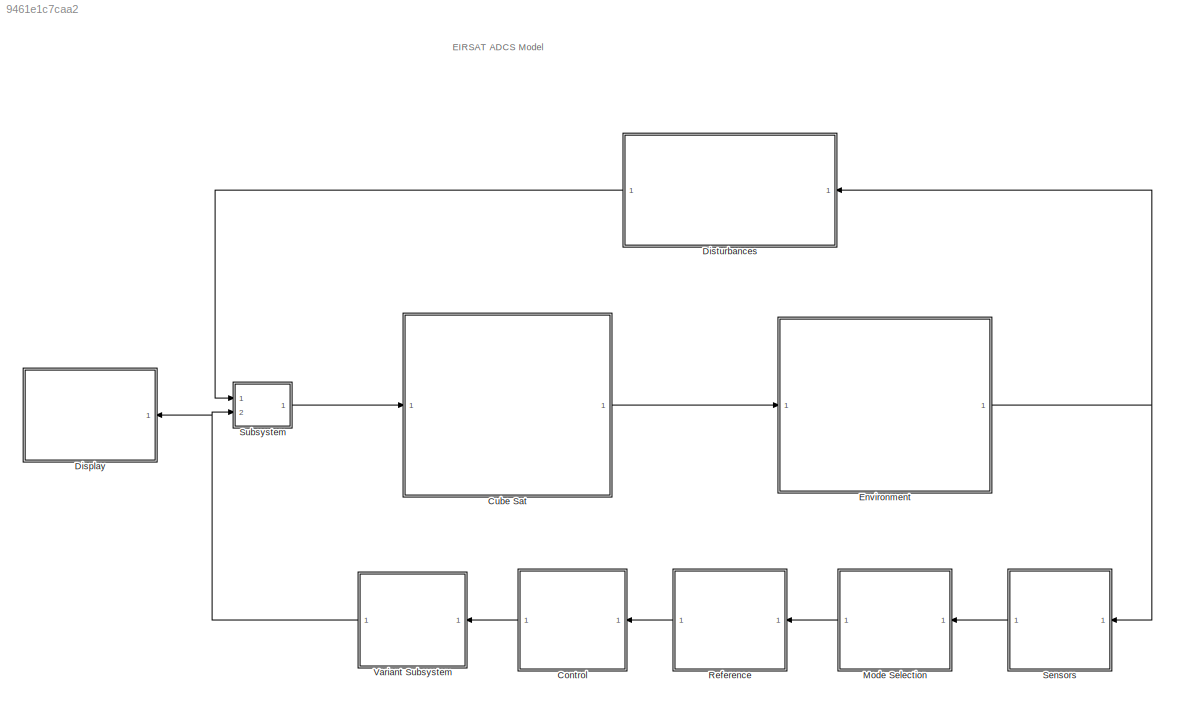
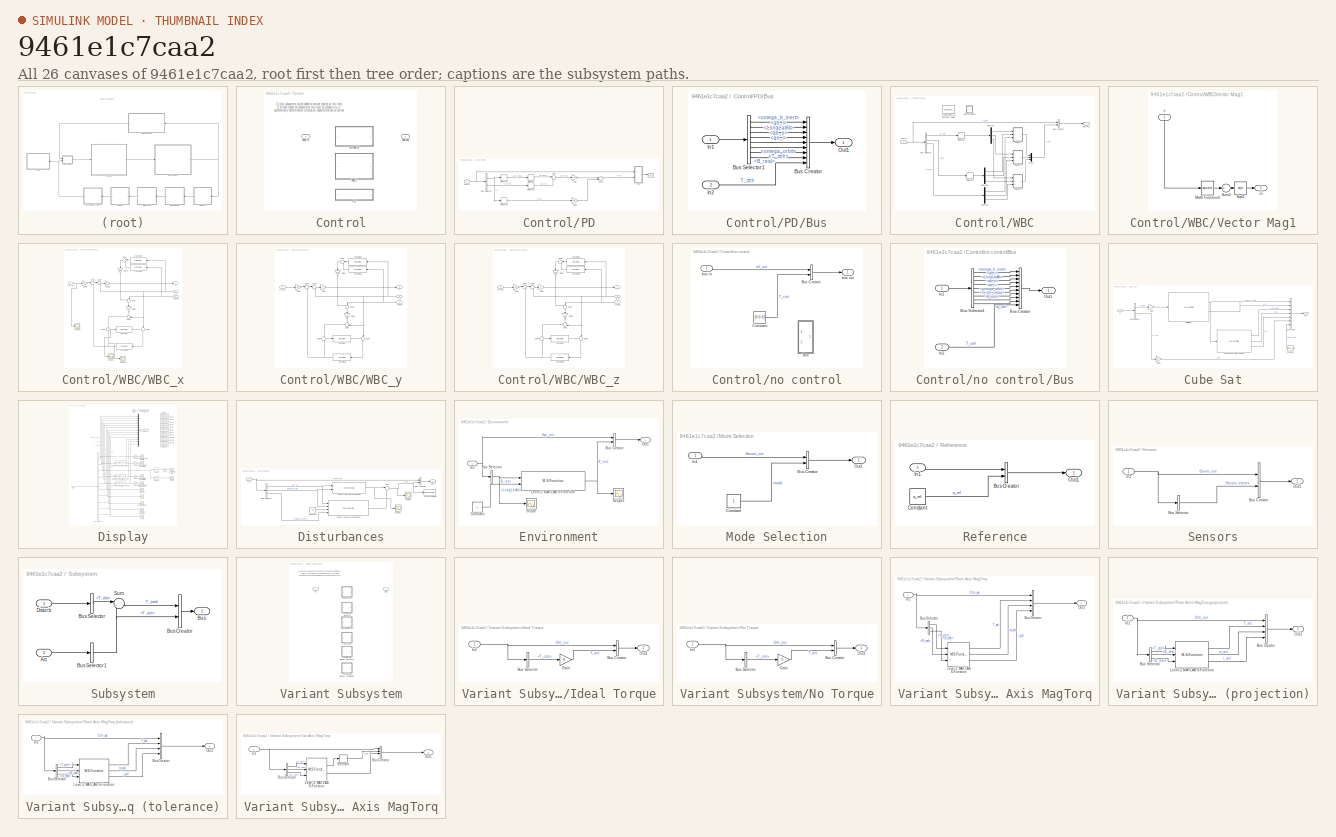
[diagram: thumbnail index - all 26 canvases of the model, root first then tree order]
MODEL slx_9461e1c7caa2
KIND model
CONFIG AbsTol = auto
CONFIG EnableMultiTasking = off
CONFIG FixedStep = auto
CONFIG MaxStep = auto
CONFIG MinStep = auto
CONFIG RelTol = 1e-6
CONFIG SampleTimeConstraint = Unconstrained
CONFIG Solver = ode45
CONFIG SolverName = ode45
CONFIG StartTime = 0.0
CONFIG StopTime = T_stop
BLOCK [SubSystem] Control
  Ports = [1, 1]
  RequestExecContextInheritance = off
  Variant = on
BLOCK [SubSystem] Control/PD
  Ports = [1, 1]
  RequestExecContextInheritance = off
  Variant = off
  VariantControl = CtrlType==2
BLOCK [SubSystem] Control/PD/Bus
  Ports = [2, 1]
  RequestExecContextInheritance = off
  Variant = off
BLOCK [BusSelector] Control/PD/Bus Selector
  OutputAsBus = off
  OutputSignals = Sensor_out.x,q_ref
  Ports = [1, 2]
BLOCK [BusCreator] Control/PD/Bus/Bus Creator
  DisplayOption = bar
  InheritFromInputs = on
  Inputs = 9
  Ports = [9, 1]
BLOCK [BusSelector] Control/PD/Bus/Bus Selector1
  OutputAsBus = off
  OutputSignals = Mode_select_out.signal1.Dyn_out.omega_b_inert,Mode_select_out.signal1.Dyn_out.qb_i,Mode_select_out.signal1.Dyn_out.LongLatAlt,Mode_select_out.signal1.Dyn_out.qb_o,Mode_select_out.signal1.Dyn_out.qo_i,Mode_select_out.signal1.Dyn_out.omega_orbit,Mode_select_out.signal1.Dyn_out.T_ctrlr,Mode_select_out.signal1.B_real
  Ports = [1, 8]
BLOCK [Inport] Control/PD/Bus/In1
  IconDisplay = Port number
BLOCK [Inport] Control/PD/Bus/In2
  IconDisplay = Port number
  Port = 2
BLOCK [Outport] Control/PD/Bus/Out1
  IconDisplay = Port number
BLOCK [Gain] Control/PD/Gain
  Gain = kp
  OutDataTypeStr = Inherit: Inherit via internal rule
  ParamDataTypeStr = Inherit: Inherit via internal rule
  SaturateOnIntegerOverflow = off
BLOCK [Gain] Control/PD/Gain1
  Gain = kd
  OutDataTypeStr = Inherit: Inherit via internal rule
  ParamDataTypeStr = Inherit: Inherit via internal rule
  SaturateOnIntegerOverflow = off
BLOCK [Selector] Control/PD/Selector
  IndexOptions = Index vector (dialog)
  Indices = [2 3 4]
  InputPortWidth = 4
  OutputSizes = 1
  Ports = [1, 1]
BLOCK [Selector] Control/PD/Selector1
  IndexOptions = Index vector (dialog)
  Indices = [2 3 4]
  InputPortWidth = 4
  OutputSizes = 1
  Ports = [1, 1]
BLOCK [Selector] Control/PD/Selector2
  IndexOptions = Index vector (dialog)
  Indices = [4;5;6;7]
  InputPortWidth = 18
  OutputSizes = 1
  Ports = [1, 1]
BLOCK [Selector] Control/PD/Selector3
  IndexOptions = Index vector (dialog)
  Indices = [1,2,3]
  InputPortWidth = 18
  OutputSizes = 1
  Ports = [1, 1]
BLOCK [Sum] Control/PD/Sum
  IconShape = round
  InputSameDT = off
  Inputs = |+-
  OutDataTypeStr = Inherit: Inherit via internal rule
  Ports = [2, 1]
  SaturateOnIntegerOverflow = off
BLOCK [Sum] Control/PD/Sum1
  InputSameDT = off
  OutDataTypeStr = Inherit: Inherit via internal rule
  Ports = [2, 1]
  SaturateOnIntegerOverflow = off
BLOCK [Inport] Control/PD/bus in
  IconDisplay = Port number
BLOCK [Outport] Control/PD/bus out
  IconDisplay = Port number
BLOCK [SubSystem] Control/WBC
  Ports = [1, 1]
  RequestExecContextInheritance = off
  Variant = off
  VariantControl = CtrlType==1
BLOCK [BusCreator] Control/WBC/Bus Creator
  DisplayOption = bar
  InheritFromInputs = on
  Inputs = 2
  Ports = [2, 1]
BLOCK [BusSelector] Control/WBC/Bus Selector
  OutputAsBus = off
  OutputSignals = q_ref,signal1.Sensor_out.Enviro_out.Dyn_out.qb_i,signal1.Sensor_out.Enviro_out.Dyn_out.T_ctrlr,signal1.Sensor_out.Sensor_values.B_real
  Ports = [1, 4]
BLOCK [Demux] Control/WBC/Demux1
  DisplayOption = bar
  Outputs = 3
  Ports = [1, 3]
BLOCK [Demux] Control/WBC/Demux3
  DisplayOption = bar
  Outputs = 3
  Ports = [1, 3]
BLOCK [Demux] Control/WBC/Demux4
  DisplayOption = bar
  Outputs = 3
  Ports = [1, 3]
BLOCK [Mux] Control/WBC/Mux4
  DisplayOption = bar
  Inputs = 3
  Ports = [3, 1]
BLOCK [Reference] Control/WBC/Quaternions to Rotation Angles  REF=sharedtransform/Quaternions to Rotation Angles
  AttributesFormatString = Rotation Order: %<rotationOrder>
  Commented = on
  Ports = [1, 1]
  SourceBlock = sharedtransform/Quaternions to Rotation Angles
  SourceProductBaseCode = AE
  SourceProductName = Aerospace Blockset
  SourceType = Quat2Ang
BLOCK [Selector] Control/WBC/Selector
  IndexOptions = Index vector (dialog)
  Indices = [2 3 4]
  InputPortWidth = 4
  OutputSizes = 1
  Ports = [1, 1]
BLOCK [Selector] Control/WBC/Selector1
  IndexOptions = Index vector (dialog)
  Indices = [2 3 4]
  InputPortWidth = 4
  OutputSizes = 1
  Ports = [1, 1]
BLOCK [SubSystem] Control/WBC/Vector Mag1
  Commented = on
  Ports = [1, 1]
  RequestExecContextInheritance = off
  Variant = off
BLOCK [Math] Control/WBC/Vector Mag1/Math Function2
  Operator = square
  Ports = [1, 1]
BLOCK [Sqrt] Control/WBC/Vector Mag1/Sqrt2
BLOCK [Sum] Control/WBC/Vector Mag1/Sum2
  IconShape = round
  InputSameDT = off
  Inputs = +
  OutDataTypeStr = Inherit: Inherit via internal rule
  Ports = [1, 1]
  SaturateOnIntegerOverflow = off
BLOCK [Outport] Control/WBC/Vector Mag1/m
  IconDisplay = Port number
BLOCK [Inport] Control/WBC/Vector Mag1/v
  IconDisplay = Port number
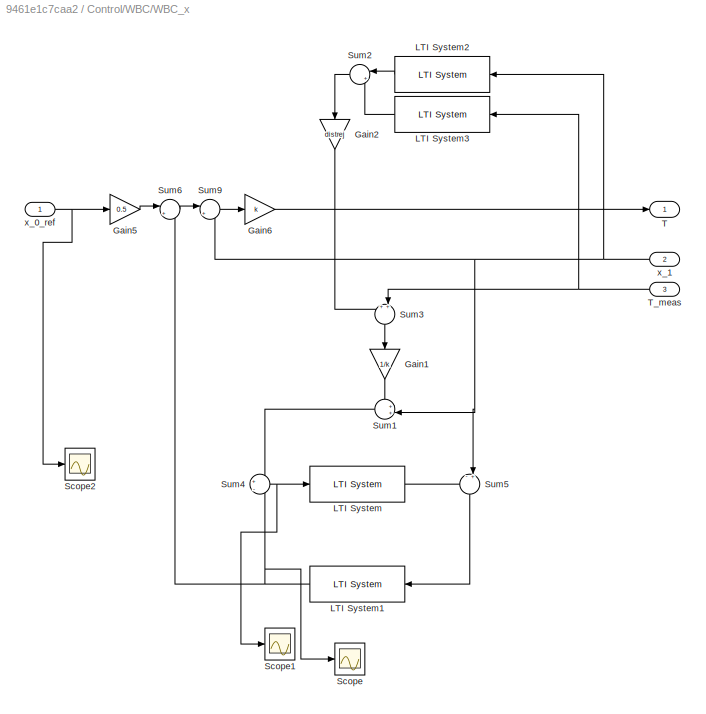
BLOCK [SubSystem] Control/WBC/WBC_x
  Ports = [3, 1]
  RequestExecContextInheritance = off
  Variant = off
BLOCK [Gain] Control/WBC/WBC_x/Gain1
  Gain = 1/k
  OutDataTypeStr = Inherit: Inherit via internal rule
  ParamDataTypeStr = Inherit: Inherit via internal rule
  SaturateOnIntegerOverflow = off
BLOCK [Gain] Control/WBC/WBC_x/Gain2
  Gain = distrej
  OutDataTypeStr = Inherit: Inherit via internal rule
  ParamDataTypeStr = Inherit: Inherit via internal rule
  SaturateOnIntegerOverflow = off
BLOCK [Gain] Control/WBC/WBC_x/Gain5
  Gain = 0.5
  OutDataTypeStr = Inherit: Inherit via internal rule
  ParamDataTypeStr = Inherit: Inherit via internal rule
  SaturateOnIntegerOverflow = off
BLOCK [Gain] Control/WBC/WBC_x/Gain6
  Gain = k
  OutDataTypeStr = Inherit: Inherit via internal rule
  ParamDataTypeStr = Inherit: Inherit via internal rule
  SaturateOnIntegerOverflow = off
BLOCK [Reference] Control/WBC/WBC_x/LTI System  REF=cstblocks/LTI System
  Ports = [1, 1]
  SourceBlock = cstblocks/LTI System
  SourceProductBaseCode = CT
  SourceProductName = Control System Toolbox
  SourceType = LTI Block
BLOCK [Reference] Control/WBC/WBC_x/LTI System1  REF=cstblocks/LTI System
  Ports = [1, 1]
  SourceBlock = cstblocks/LTI System
  SourceProductBaseCode = CT
  SourceProductName = Control System Toolbox
  SourceType = LTI Block
BLOCK [Reference] Control/WBC/WBC_x/LTI System2  REF=cstblocks/LTI System
  Ports = [1, 1]
  SourceBlock = cstblocks/LTI System
  SourceProductBaseCode = CT
  SourceProductName = Control System Toolbox
  SourceType = LTI Block
BLOCK [Reference] Control/WBC/WBC_x/LTI System3  REF=cstblocks/LTI System
  Ports = [1, 1]
  SourceBlock = cstblocks/LTI System
  SourceProductBaseCode = CT
  SourceProductName = Control System Toolbox
  SourceType = LTI Block
BLOCK [Scope] Control/WBC/WBC_x/Scope
  NumInputPorts = 1
  Ports = [1]
  ScopeSpecificationString = Simulink.scopes.TimeScopeBlockCfg('CurrentConfiguration', extmgr.ConfigurationSet(extmgr.Configuration('Core','General UI',true),extmgr.Configuration('Core','Source UI',true),extmgr.Configuration('Sources','WiredSimulink',true,'DataLoggingVariableName','ScopeData1'),extmgr.Configuration('Visuals','Time Domain',true,'SerializedDisplays',{struct('MinYLimReal','-0.0036','MaxYLimReal','0.01725','YLabe...<+1368ch>
BLOCK [Scope] Control/WBC/WBC_x/Scope1
  NumInputPorts = 1
  Ports = [1]
  ScopeSpecificationString = Simulink.scopes.TimeScopeBlockCfg('CurrentConfiguration', extmgr.ConfigurationSet(extmgr.Configuration('Core','General UI',true),extmgr.Configuration('Core','Source UI',true),extmgr.Configuration('Sources','WiredSimulink',true,'DataLoggingVariableName','ScopeData2'),extmgr.Configuration('Visuals','Time Domain',true,'SerializedDisplays',{struct('MinYLimReal','-0.00214','MaxYLimReal','0.01925','YLab...<+1417ch>
BLOCK [Scope] Control/WBC/WBC_x/Scope2
  NumInputPorts = 1
  Ports = [1]
  ScopeSpecificationString = Simulink.scopes.TimeScopeBlockCfg('CurrentConfiguration', extmgr.ConfigurationSet(extmgr.Configuration('Core','General UI',true),extmgr.Configuration('Core','Source UI',true),extmgr.Configuration('Sources','WiredSimulink',true,'DataLoggingVariableName','ScopeData3'),extmgr.Configuration('Visuals','Time Domain',true,'SerializedDisplays',{struct('MinYLimReal','0.015','MaxYLimReal','0.035','YLabelRea...<+1402ch>
BLOCK [Sum] Control/WBC/WBC_x/Sum1
  IconShape = round
  InputSameDT = off
  Inputs = ++|
  OutDataTypeStr = Inherit: Inherit via internal rule
  Ports = [2, 1]
  SaturateOnIntegerOverflow = off
BLOCK [Sum] Control/WBC/WBC_x/Sum2
  IconShape = round
  InputSameDT = off
  Inputs = |++
  OutDataTypeStr = Inherit: Inherit via internal rule
  Ports = [2, 1]
  SaturateOnIntegerOverflow = off
BLOCK [Sum] Control/WBC/WBC_x/Sum3
  IconShape = round
  InputSameDT = off
  Inputs = ++|
  OutDataTypeStr = Inherit: Inherit via internal rule
  Ports = [2, 1]
  SaturateOnIntegerOverflow = off
BLOCK [Sum] Control/WBC/WBC_x/Sum4
  IconShape = round
  InputSameDT = off
  Inputs = +|-
  OutDataTypeStr = Inherit: Inherit via internal rule
  Ports = [2, 1]
  SaturateOnIntegerOverflow = off
BLOCK [Sum] Control/WBC/WBC_x/Sum5
  IconShape = round
  InputSameDT = off
  Inputs = -+|
  OutDataTypeStr = Inherit: Inherit via internal rule
  Ports = [2, 1]
  SaturateOnIntegerOverflow = off
BLOCK [Sum] Control/WBC/WBC_x/Sum6
  IconShape = round
  InputSameDT = off
  Inputs = |++
  OutDataTypeStr = Inherit: Inherit via internal rule
  Ports = [2, 1]
  SaturateOnIntegerOverflow = off
BLOCK [Sum] Control/WBC/WBC_x/Sum9
  IconShape = round
  InputSameDT = off
  Inputs = |+-
  OutDataTypeStr = Inherit: Inherit via internal rule
  Ports = [2, 1]
  SaturateOnIntegerOverflow = off
BLOCK [Outport] Control/WBC/WBC_x/T
  IconDisplay = Port number
BLOCK [Inport] Control/WBC/WBC_x/T_meas
  IconDisplay = Port number
  Port = 3
BLOCK [Inport] Control/WBC/WBC_x/x_0_ref
  IconDisplay = Port number
BLOCK [Inport] Control/WBC/WBC_x/x_1
  IconDisplay = Port number
  Port = 2
BLOCK [SubSystem] Control/WBC/WBC_y
  Ports = [3, 1]
  RequestExecContextInheritance = off
  Variant = off
BLOCK [Gain] Control/WBC/WBC_y/Gain1
  Gain = 1/k
  OutDataTypeStr = Inherit: Inherit via internal rule
  ParamDataTypeStr = Inherit: Inherit via internal rule
  SaturateOnIntegerOverflow = off
BLOCK [Gain] Control/WBC/WBC_y/Gain2
  Gain = distrej
  OutDataTypeStr = Inherit: Inherit via internal rule
  ParamDataTypeStr = Inherit: Inherit via internal rule
  SaturateOnIntegerOverflow = off
BLOCK [Gain] Control/WBC/WBC_y/Gain5
  Gain = 0.5
  OutDataTypeStr = Inherit: Inherit via internal rule
  ParamDataTypeStr = Inherit: Inherit via internal rule
  SaturateOnIntegerOverflow = off
BLOCK [Gain] Control/WBC/WBC_y/Gain6
  Gain = k
  OutDataTypeStr = Inherit: Inherit via internal rule
  ParamDataTypeStr = Inherit: Inherit via internal rule
  SaturateOnIntegerOverflow = off
BLOCK [Reference] Control/WBC/WBC_y/LTI System  REF=cstblocks/LTI System
  Ports = [1, 1]
  SourceBlock = cstblocks/LTI System
  SourceProductBaseCode = CT
  SourceProductName = Control System Toolbox
  SourceType = LTI Block
BLOCK [Reference] Control/WBC/WBC_y/LTI System1  REF=cstblocks/LTI System
  Ports = [1, 1]
  SourceBlock = cstblocks/LTI System
  SourceProductBaseCode = CT
  SourceProductName = Control System Toolbox
  SourceType = LTI Block
BLOCK [Reference] Control/WBC/WBC_y/LTI System2  REF=cstblocks/LTI System
  Ports = [1, 1]
  SourceBlock = cstblocks/LTI System
  SourceProductBaseCode = CT
  SourceProductName = Control System Toolbox
  SourceType = LTI Block
BLOCK [Reference] Control/WBC/WBC_y/LTI System3  REF=cstblocks/LTI System
  Ports = [1, 1]
  SourceBlock = cstblocks/LTI System
  SourceProductBaseCode = CT
  SourceProductName = Control System Toolbox
  SourceType = LTI Block
BLOCK [Sum] Control/WBC/WBC_y/Sum1
  IconShape = round
  InputSameDT = off
  Inputs = ++|
  OutDataTypeStr = Inherit: Inherit via internal rule
  Ports = [2, 1]
  SaturateOnIntegerOverflow = off
BLOCK [Sum] Control/WBC/WBC_y/Sum2
  IconShape = round
  InputSameDT = off
  Inputs = |++
  OutDataTypeStr = Inherit: Inherit via internal rule
  Ports = [2, 1]
  SaturateOnIntegerOverflow = off
BLOCK [Sum] Control/WBC/WBC_y/Sum3
  IconShape = round
  InputSameDT = off
  Inputs = ++|
  OutDataTypeStr = Inherit: Inherit via internal rule
  Ports = [2, 1]
  SaturateOnIntegerOverflow = off
BLOCK [Sum] Control/WBC/WBC_y/Sum4
  IconShape = round
  InputSameDT = off
  Inputs = +|-
  OutDataTypeStr = Inherit: Inherit via internal rule
  Ports = [2, 1]
  SaturateOnIntegerOverflow = off
BLOCK [Sum] Control/WBC/WBC_y/Sum5
  IconShape = round
  InputSameDT = off
  Inputs = -+|
  OutDataTypeStr = Inherit: Inherit via internal rule
  Ports = [2, 1]
  SaturateOnIntegerOverflow = off
BLOCK [Sum] Control/WBC/WBC_y/Sum6
  IconShape = round
  InputSameDT = off
  Inputs = |++
  OutDataTypeStr = Inherit: Inherit via internal rule
  Ports = [2, 1]
  SaturateOnIntegerOverflow = off
BLOCK [Sum] Control/WBC/WBC_y/Sum9
  IconShape = round
  InputSameDT = off
  Inputs = |+-
  OutDataTypeStr = Inherit: Inherit via internal rule
  Ports = [2, 1]
  SaturateOnIntegerOverflow = off
BLOCK [Outport] Control/WBC/WBC_y/T
  IconDisplay = Port number
BLOCK [Inport] Control/WBC/WBC_y/T_meas
  IconDisplay = Port number
  Port = 3
BLOCK [Inport] Control/WBC/WBC_y/x_0_ref
  IconDisplay = Port number
BLOCK [Inport] Control/WBC/WBC_y/x_1
  IconDisplay = Port number
  Port = 2
BLOCK [SubSystem] Control/WBC/WBC_z
  Ports = [3, 1]
  RequestExecContextInheritance = off
  Variant = off
BLOCK [Gain] Control/WBC/WBC_z/Gain1
  Gain = 1/k
  OutDataTypeStr = Inherit: Inherit via internal rule
  ParamDataTypeStr = Inherit: Inherit via internal rule
  SaturateOnIntegerOverflow = off
BLOCK [Gain] Control/WBC/WBC_z/Gain2
  Gain = distrej
  OutDataTypeStr = Inherit: Inherit via internal rule
  ParamDataTypeStr = Inherit: Inherit via internal rule
  SaturateOnIntegerOverflow = off
BLOCK [Gain] Control/WBC/WBC_z/Gain5
  Gain = 0.5
  OutDataTypeStr = Inherit: Inherit via internal rule
  ParamDataTypeStr = Inherit: Inherit via internal rule
  SaturateOnIntegerOverflow = off
BLOCK [Gain] Control/WBC/WBC_z/Gain6
  Gain = k
  OutDataTypeStr = Inherit: Inherit via internal rule
  ParamDataTypeStr = Inherit: Inherit via internal rule
  SaturateOnIntegerOverflow = off
BLOCK [Reference] Control/WBC/WBC_z/LTI System  REF=cstblocks/LTI System
  Ports = [1, 1]
  SourceBlock = cstblocks/LTI System
  SourceProductBaseCode = CT
  SourceProductName = Control System Toolbox
  SourceType = LTI Block
BLOCK [Reference] Control/WBC/WBC_z/LTI System1  REF=cstblocks/LTI System
  Ports = [1, 1]
  SourceBlock = cstblocks/LTI System
  SourceProductBaseCode = CT
  SourceProductName = Control System Toolbox
  SourceType = LTI Block
BLOCK [Reference] Control/WBC/WBC_z/LTI System2  REF=cstblocks/LTI System
  Ports = [1, 1]
  SourceBlock = cstblocks/LTI System
  SourceProductBaseCode = CT
  SourceProductName = Control System Toolbox
  SourceType = LTI Block
BLOCK [Reference] Control/WBC/WBC_z/LTI System3  REF=cstblocks/LTI System
  Ports = [1, 1]
  SourceBlock = cstblocks/LTI System
  SourceProductBaseCode = CT
  SourceProductName = Control System Toolbox
  SourceType = LTI Block
BLOCK [Sum] Control/WBC/WBC_z/Sum1
  IconShape = round
  InputSameDT = off
  Inputs = ++|
  OutDataTypeStr = Inherit: Inherit via internal rule
  Ports = [2, 1]
  SaturateOnIntegerOverflow = off
BLOCK [Sum] Control/WBC/WBC_z/Sum2
  IconShape = round
  InputSameDT = off
  Inputs = |++
  OutDataTypeStr = Inherit: Inherit via internal rule
  Ports = [2, 1]
  SaturateOnIntegerOverflow = off
BLOCK [Sum] Control/WBC/WBC_z/Sum3
  IconShape = round
  InputSameDT = off
  Inputs = ++|
  OutDataTypeStr = Inherit: Inherit via internal rule
  Ports = [2, 1]
  SaturateOnIntegerOverflow = off
BLOCK [Sum] Control/WBC/WBC_z/Sum4
  IconShape = round
  InputSameDT = off
  Inputs = +|-
  OutDataTypeStr = Inherit: Inherit via internal rule
  Ports = [2, 1]
  SaturateOnIntegerOverflow = off
BLOCK [Sum] Control/WBC/WBC_z/Sum5
  IconShape = round
  InputSameDT = off
  Inputs = -+|
  OutDataTypeStr = Inherit: Inherit via internal rule
  Ports = [2, 1]
  SaturateOnIntegerOverflow = off
BLOCK [Sum] Control/WBC/WBC_z/Sum6
  IconShape = round
  InputSameDT = off
  Inputs = |++
  OutDataTypeStr = Inherit: Inherit via internal rule
  Ports = [2, 1]
  SaturateOnIntegerOverflow = off
BLOCK [Sum] Control/WBC/WBC_z/Sum9
  IconShape = round
  InputSameDT = off
  Inputs = |+-
  OutDataTypeStr = Inherit: Inherit via internal rule
  Ports = [2, 1]
  SaturateOnIntegerOverflow = off
BLOCK [Outport] Control/WBC/WBC_z/T
  IconDisplay = Port number
BLOCK [Inport] Control/WBC/WBC_z/T_meas
  IconDisplay = Port number
  Port = 3
BLOCK [Inport] Control/WBC/WBC_z/x_0_ref
  IconDisplay = Port number
BLOCK [Inport] Control/WBC/WBC_z/x_1
  IconDisplay = Port number
  Port = 2
BLOCK [Inport] Control/WBC/bus in
  IconDisplay = Port number
BLOCK [Outport] Control/WBC/bus out
  IconDisplay = Port number
BLOCK [Inport] Control/bus in
  IconDisplay = Port number
BLOCK [Outport] Control/bus out
  IconDisplay = Port number
BLOCK [SubSystem] Control/no control
  Ports = [1, 1]
  RequestExecContextInheritance = off
  Variant = off
  VariantControl = CtrlType==0
BLOCK [SubSystem] Control/no control/Bus
  Commented = on
  Ports = [2, 1]
  RequestExecContextInheritance = off
  Variant = off
BLOCK [BusCreator] Control/no control/Bus Creator
  DisplayOption = bar
  InheritFromInputs = on
  Inputs = 2
  Ports = [2, 1]
BLOCK [BusCreator] Control/no control/Bus/Bus Creator
  DisplayOption = bar
  InheritFromInputs = on
  Inputs = 10
  Ports = [10, 1]
BLOCK [BusSelector] Control/no control/Bus/Bus Selector1
  OutputAsBus = off
  OutputSignals = omega_b_inert,qb_i,LongLatAlt,qb_o,qo_i,omega_orbit,T_ctrlr_meas,B_real,q_ref
  Ports = [1, 9]
BLOCK [Inport] Control/no control/Bus/In1
  IconDisplay = Port number
BLOCK [Inport] Control/no control/Bus/In2
  IconDisplay = Port number
  Port = 2
BLOCK [Outport] Control/no control/Bus/Out1
  IconDisplay = Port number
BLOCK [Constant] Control/no control/Constant
  Value = [0;0;0]
BLOCK [Inport] Control/no control/bus in
  IconDisplay = Port number
BLOCK [Outport] Control/no control/bus out
  IconDisplay = Port number
BLOCK [SubSystem] Cube Sat
  Ports = [1, 1]
  RequestExecContextInheritance = off
  Variant = off
BLOCK [BusCreator] Cube Sat/Bus Creator
  DisplayOption = bar
  InheritFromInputs = on
  Inputs = 7
  Ports = [7, 1]
BLOCK [BusSelector] Cube Sat/Bus Selector1
  OutputAsBus = off
  OutputSignals = T_total,T_act
  Ports = [1, 2]
BLOCK [Constant] Cube Sat/Constant
  Value = omega_orbit
BLOCK [Gain] Cube Sat/Gain
  OutDataTypeStr = Inherit: Inherit via internal rule
  ParamDataTypeStr = Inherit: Inherit via internal rule
  SaturateOnIntegerOverflow = off
BLOCK [Gain] Cube Sat/Gain1
  OutDataTypeStr = Inherit: Inherit via internal rule
  ParamDataTypeStr = Inherit: Inherit via internal rule
  SaturateOnIntegerOverflow = off
BLOCK [M-S-Function] Cube Sat/Level-2 MATLAB S-Function
  FunctionName = OrbitSfun
  Parameters = x_orbit_init,omega_orbit
  Ports = [1, 3]
BLOCK [M-S-Function] Cube Sat/Satellite Dyn
  FunctionName = CubeSatSfun
  Parameters = x_0,I
  Ports = [1, 2]
BLOCK [Inport] Cube Sat/in
  IconDisplay = Port number
BLOCK [Outport] Cube Sat/out
  IconDisplay = Port number
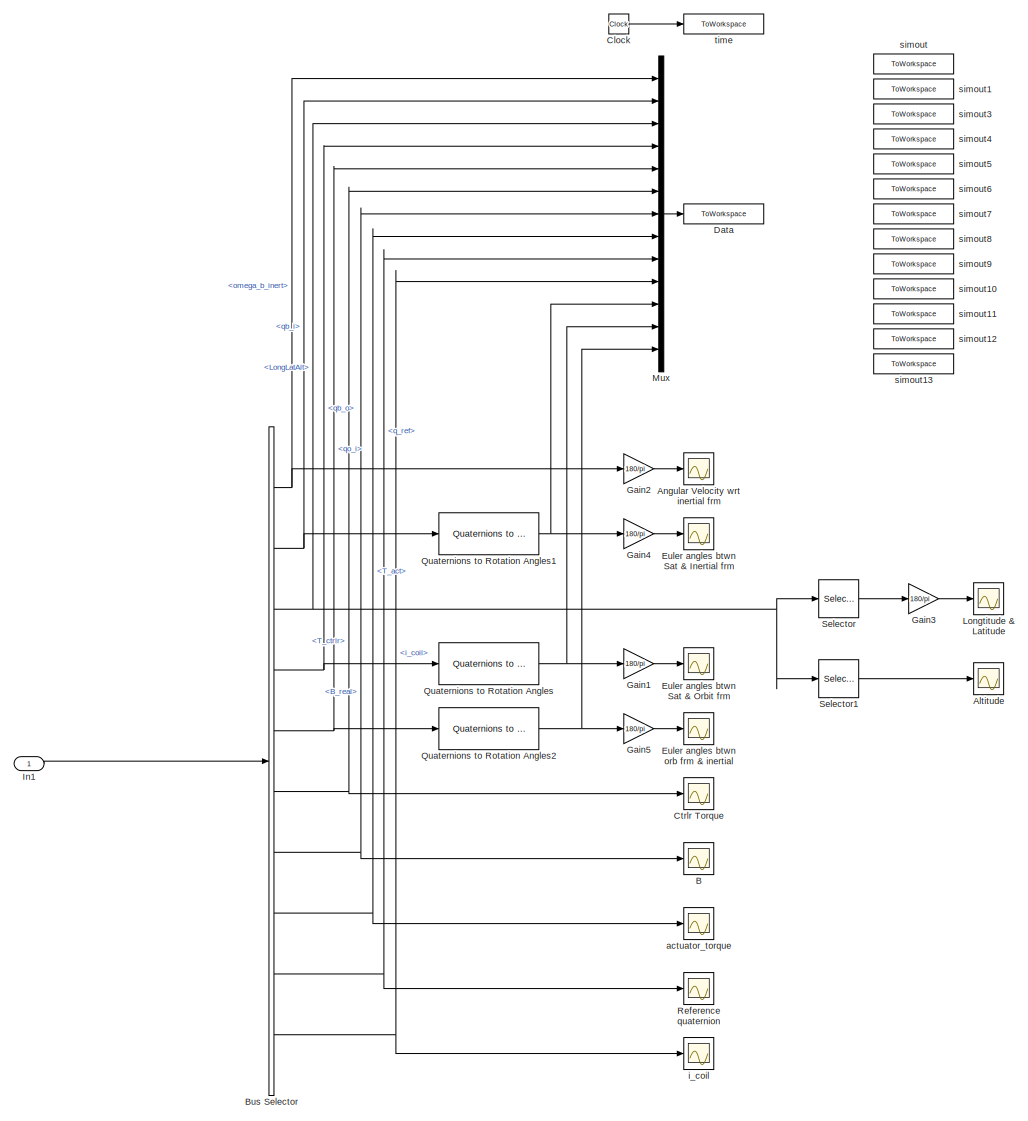
[diagram: Display - part 1/1, most of the canvas]
BLOCK [SubSystem] Display
  Ports = [1]
  RequestExecContextInheritance = off
  Variant = off
BLOCK [Scope] Display/Altitude
  NumInputPorts = 1
  Ports = [1]
  ScopeSpecificationString = Simulink.scopes.TimeScopeBlockCfg('CurrentConfiguration', extmgr.ConfigurationSet(extmgr.Configuration('Core','General UI',true),extmgr.Configuration('Core','Source UI',true),extmgr.Configuration('Sources','WiredSimulink',true,'DataLoggingVariableName','ScopeData5','DataLoggingSaveFormat','Array','DataLoggingDecimation','1','DataLoggingDecimateData',true),extmgr.Configuration('Visuals','Time Domai...<+1699ch>
BLOCK [Scope] Display/Angular Velocity wrt inertial frm
  NumInputPorts = 1
  Ports = [1]
  ScopeSpecificationString = Simulink.scopes.TimeScopeBlockCfg('CurrentConfiguration', extmgr.ConfigurationSet(extmgr.Configuration('Core','General UI',true,'FigureColor',[0.501960784313725 0.501960784313725 0.501960784313725]),extmgr.Configuration('Core','Source UI',true),extmgr.Configuration('Sources','WiredSimulink',true,'DataLoggingSaveFormat','Array','DataLoggingDecimation','1','DataLoggingDecimateData',true),extmgr.Conf...<+2726ch>
BLOCK [Scope] Display/B
  NumInputPorts = 1
  Ports = [1]
  ScopeSpecificationString = Simulink.scopes.TimeScopeBlockCfg('CurrentConfiguration', extmgr.ConfigurationSet(extmgr.Configuration('Core','General UI',true),extmgr.Configuration('Core','Source UI',true),extmgr.Configuration('Sources','WiredSimulink',true,'DataLoggingVariableName','ScopeData11','DataLoggingSaveFormat','Array','DataLoggingDecimation','1','DataLoggingDecimateData',true),extmgr.Configuration('Visuals','Time Doma...<+1725ch>
BLOCK [BusSelector] Display/Bus Selector
  OutputAsBus = off
  OutputSignals = Ctrlr_out.ref_out.signal1.Sensor_out.Enviro_out.Dyn_out.omega_b_inert,Ctrlr_out.ref_out.signal1.Sensor_out.Enviro_out.Dyn_out.qb_i,Ctrlr_out.ref_out.signal1.Sensor_out.Enviro_out.Dyn_out.LongLatAlt,Ctrlr_out.ref_out.signal1.Sensor_out.Enviro_out.Dyn_out.qb_o,Ctrlr_out.ref_out.signal1.Sensor_out.Enviro_out.Dyn_out.qo_i,Ctrlr_out.ref_out.signal1.Sensor_out.Enviro_out.Dyn_out.T_ctrlr,Ctrlr_out.ref_ou...<+78ch>
  Ports = [1, 10]
BLOCK [Clock] Display/Clock
BLOCK [Scope] Display/Ctrlr Torque
  NumInputPorts = 1
  Ports = [1]
  ScopeSpecificationString = Simulink.scopes.TimeScopeBlockCfg('CurrentConfiguration', extmgr.ConfigurationSet(extmgr.Configuration('Core','General UI',true),extmgr.Configuration('Core','Source UI',true),extmgr.Configuration('Sources','WiredSimulink',true,'DataLoggingVariableName','ScopeData2','DataLoggingSaveFormat','Array','DataLoggingDecimation','1','DataLoggingDecimateData',true),extmgr.Configuration('Visuals','Time Domai...<+1784ch>
BLOCK [ToWorkspace] Display/Data 
  FixptAsFi = on
  MaxDataPoints = inf
  Ports = [1]
  SampleTime = -1
  Save2DSignal = 3-D array (concatenate along third dimension)
  VariableName = DATA
BLOCK [Scope] Display/Euler angles btwn Sat & Inertial frm
  NumInputPorts = 1
  Ports = [1]
  ScopeSpecificationString = Simulink.scopes.TimeScopeBlockCfg('CurrentConfiguration', extmgr.ConfigurationSet(extmgr.Configuration('Core','General UI',true),extmgr.Configuration('Core','Source UI',true),extmgr.Configuration('Sources','WiredSimulink',true,'DataLoggingVariableName','ScopeData4','DataLoggingSaveFormat','Array','DataLoggingDecimation','1','DataLoggingDecimateData',true),extmgr.Configuration('Visuals','Time Domai...<+1804ch>
BLOCK [Scope] Display/Euler angles btwn Sat & Orbit frm
  NumInputPorts = 1
  Ports = [1]
  ScopeSpecificationString = Simulink.scopes.TimeScopeBlockCfg('CurrentConfiguration', extmgr.ConfigurationSet(extmgr.Configuration('Core','General UI',true),extmgr.Configuration('Core','Source UI',true),extmgr.Configuration('Sources','WiredSimulink',true,'DataLoggingVariableName','ScopeData1','DataLoggingSaveFormat','Array','DataLoggingDecimation','1','DataLoggingDecimateData',true),extmgr.Configuration('Visuals','Time Domai...<+1741ch>
BLOCK [Scope] Display/Euler angles btwn orb frm & inertial
  NumInputPorts = 1
  Ports = [1]
  ScopeSpecificationString = Simulink.scopes.TimeScopeBlockCfg('CurrentConfiguration', extmgr.ConfigurationSet(extmgr.Configuration('Core','General UI',true),extmgr.Configuration('Core','Source UI',true),extmgr.Configuration('Sources','WiredSimulink',true,'DataLoggingVariableName','ScopeData6','DataLoggingSaveFormat','Array','DataLoggingDecimation','1','DataLoggingDecimateData',true),extmgr.Configuration('Visuals','Time Domai...<+1735ch>
BLOCK [Gain] Display/Gain1
  Gain = 180/pi
  OutDataTypeStr = Inherit: Inherit via internal rule
  ParamDataTypeStr = Inherit: Inherit via internal rule
  SaturateOnIntegerOverflow = off
BLOCK [Gain] Display/Gain2
  Gain = 180/pi
  OutDataTypeStr = Inherit: Inherit via internal rule
  ParamDataTypeStr = Inherit: Inherit via internal rule
  SaturateOnIntegerOverflow = off
BLOCK [Gain] Display/Gain3
  Gain = 180/pi
  OutDataTypeStr = Inherit: Inherit via internal rule
  ParamDataTypeStr = Inherit: Inherit via internal rule
  SaturateOnIntegerOverflow = off
BLOCK [Gain] Display/Gain4
  Gain = 180/pi
  OutDataTypeStr = Inherit: Inherit via internal rule
  ParamDataTypeStr = Inherit: Inherit via internal rule
  SaturateOnIntegerOverflow = off
BLOCK [Gain] Display/Gain5
  Gain = 180/pi
  OutDataTypeStr = Inherit: Inherit via internal rule
  ParamDataTypeStr = Inherit: Inherit via internal rule
  SaturateOnIntegerOverflow = off
BLOCK [Inport] Display/In1
  IconDisplay = Port number
BLOCK [Scope] Display/Longtitude & Latitude
  NumInputPorts = 1
  Ports = [1]
  ScopeSpecificationString = Simulink.scopes.TimeScopeBlockCfg('CurrentConfiguration', extmgr.ConfigurationSet(extmgr.Configuration('Core','General UI',true),extmgr.Configuration('Core','Source UI',true),extmgr.Configuration('Sources','WiredSimulink',true,'DataLoggingVariableName','ScopeData3','DataLoggingSaveFormat','Array','DataLoggingDecimation','1','DataLoggingDecimateData',true),extmgr.Configuration('Visuals','Time Domai...<+1675ch>
BLOCK [Mux] Display/Mux
  DisplayOption = bar
  Inputs = 13
  Ports = [13, 1]
BLOCK [Reference] Display/Quaternions to Rotation Angles  REF=sharedtransform/Quaternions to Rotation Angles
  AttributesFormatString = Rotation Order: %<rotationOrder>
  Ports = [1, 1]
  SourceBlock = sharedtransform/Quaternions to Rotation Angles
  SourceType = Quat2Ang
BLOCK [Reference] Display/Quaternions to Rotation Angles1  REF=sharedtransform/Quaternions to Rotation Angles
  AttributesFormatString = Rotation Order: %<rotationOrder>
  Ports = [1, 1]
  SourceBlock = sharedtransform/Quaternions to Rotation Angles
  SourceType = Quat2Ang
BLOCK [Reference] Display/Quaternions to Rotation Angles2  REF=sharedtransform/Quaternions to Rotation Angles
  AttributesFormatString = Rotation Order: %<rotationOrder>
  Ports = [1, 1]
  SourceBlock = sharedtransform/Quaternions to Rotation Angles
  SourceType = Quat2Ang
BLOCK [Scope] Display/Reference quaternion
  NumInputPorts = 1
  Ports = [1]
  ScopeSpecificationString = Simulink.scopes.TimeScopeBlockCfg('CurrentConfiguration', extmgr.ConfigurationSet(extmgr.Configuration('Core','General UI',true),extmgr.Configuration('Core','Source UI',true),extmgr.Configuration('Sources','WiredSimulink',true,'DataLoggingVariableName','ScopeData17','DataLoggingSaveFormat','Array','DataLoggingDecimation','1','DataLoggingDecimateData',true),extmgr.Configuration('Visuals','Time Doma...<+1760ch>
BLOCK [Selector] Display/Selector
  IndexOptions = Index vector (dialog)
  Indices = [1 2]
  InputPortWidth = 3
  OutputSizes = 1
  Ports = [1, 1]
BLOCK [Selector] Display/Selector1
  IndexOptions = Index vector (dialog)
  Indices = [3]
  InputPortWidth = 3
  OutputSizes = 1
  Ports = [1, 1]
BLOCK [Scope] Display/actuator_torque
  NumInputPorts = 1
  Ports = [1]
  ScopeSpecificationString = Simulink.scopes.TimeScopeBlockCfg('CurrentConfiguration', extmgr.ConfigurationSet(extmgr.Configuration('Core','General UI',true),extmgr.Configuration('Core','Source UI',true),extmgr.Configuration('Sources','WiredSimulink',true,'DataLoggingVariableName','ScopeData12','DataLoggingSaveFormat','Array','DataLoggingDecimation','1','DataLoggingDecimateData',true),extmgr.Configuration('Visuals','Time Doma...<+1759ch>
BLOCK [Scope] Display/i_coil
  NumInputPorts = 1
  Ports = [1]
  ScopeSpecificationString = Simulink.scopes.TimeScopeBlockCfg('CurrentConfiguration', extmgr.ConfigurationSet(extmgr.Configuration('Core','General UI',true),extmgr.Configuration('Core','Source UI',true),extmgr.Configuration('Sources','WiredSimulink',true,'DataLoggingVariableName','ScopeData4','DataLoggingSaveFormat','Array','DataLoggingDecimation','1','DataLoggingDecimateData',true),extmgr.Configuration('Visuals','Time Domai...<+1718ch>
BLOCK [ToWorkspace] Display/simout 
  Commented = on
  FixptAsFi = on
  MaxDataPoints = inf
  Ports = [1]
  SampleTime = -1
  Save2DSignal = 3-D array (concatenate along third dimension)
  SaveFormat = Timeseries
  VariableName = simout
BLOCK [ToWorkspace] Display/simout1
  Commented = on
  FixptAsFi = on
  MaxDataPoints = inf
  Ports = [1]
  SampleTime = -1
  Save2DSignal = 3-D array (concatenate along third dimension)
  SaveFormat = Timeseries
  VariableName = simout1
BLOCK [ToWorkspace] Display/simout10
  Commented = on
  FixptAsFi = on
  MaxDataPoints = inf
  Ports = [1]
  SampleTime = -1
  Save2DSignal = 3-D array (concatenate along third dimension)
  SaveFormat = Timeseries
  VariableName = simout9
BLOCK [ToWorkspace] Display/simout11
  Commented = on
  FixptAsFi = on
  MaxDataPoints = inf
  Ports = [1]
  SampleTime = -1
  Save2DSignal = 3-D array (concatenate along third dimension)
  SaveFormat = Timeseries
  VariableName = simout10
BLOCK [ToWorkspace] Display/simout12
  Commented = on
  FixptAsFi = on
  MaxDataPoints = inf
  Ports = [1]
  SampleTime = -1
  Save2DSignal = 3-D array (concatenate along third dimension)
  SaveFormat = Timeseries
  VariableName = simout11
BLOCK [ToWorkspace] Display/simout13
  Commented = on
  FixptAsFi = on
  MaxDataPoints = inf
  Ports = [1]
  SampleTime = -1
  Save2DSignal = 3-D array (concatenate along third dimension)
  SaveFormat = Timeseries
  VariableName = simout12
BLOCK [ToWorkspace] Display/simout3
  Commented = on
  FixptAsFi = on
  MaxDataPoints = inf
  Ports = [1]
  SampleTime = -1
  Save2DSignal = 3-D array (concatenate along third dimension)
  SaveFormat = Timeseries
  VariableName = simout2
BLOCK [ToWorkspace] Display/simout4
  Commented = on
  FixptAsFi = on
  MaxDataPoints = inf
  Ports = [1]
  SampleTime = -1
  Save2DSignal = 3-D array (concatenate along third dimension)
  SaveFormat = Timeseries
  VariableName = simout3
BLOCK [ToWorkspace] Display/simout5
  Commented = on
  FixptAsFi = on
  MaxDataPoints = inf
  Ports = [1]
  SampleTime = -1
  Save2DSignal = 3-D array (concatenate along third dimension)
  SaveFormat = Timeseries
  VariableName = simout4
BLOCK [ToWorkspace] Display/simout6
  Commented = on
  FixptAsFi = on
  MaxDataPoints = inf
  Ports = [1]
  SampleTime = -1
  Save2DSignal = 3-D array (concatenate along third dimension)
  SaveFormat = Timeseries
  VariableName = simout5
BLOCK [ToWorkspace] Display/simout7
  Commented = on
  FixptAsFi = on
  MaxDataPoints = inf
  Ports = [1]
  SampleTime = -1
  Save2DSignal = 3-D array (concatenate along third dimension)
  SaveFormat = Timeseries
  VariableName = simout6
BLOCK [ToWorkspace] Display/simout8
  Commented = on
  FixptAsFi = on
  MaxDataPoints = inf
  Ports = [1]
  SampleTime = -1
  Save2DSignal = 3-D array (concatenate along third dimension)
  SaveFormat = Timeseries
  VariableName = simout7
BLOCK [ToWorkspace] Display/simout9
  Commented = on
  FixptAsFi = on
  MaxDataPoints = inf
  Ports = [1]
  SampleTime = -1
  Save2DSignal = 3-D array (concatenate along third dimension)
  SaveFormat = Timeseries
  VariableName = simout8
BLOCK [ToWorkspace] Display/time
  FixptAsFi = on
  MaxDataPoints = inf
  Ports = [1]
  SampleTime = -1
  Save2DSignal = 3-D array (concatenate along third dimension)
  VariableName = TIME
BLOCK [SubSystem] Disturbances
  Ports = [1, 1]
  RequestExecContextInheritance = off
  Variant = off
BLOCK [BusCreator] Disturbances/Bus Creator
  DisplayOption = bar
  InheritFromInputs = on
  Inputs = 2
  Ports = [2, 1]
BLOCK [BusSelector] Disturbances/Bus Selector
  OutputAsBus = off
  OutputSignals = Dyn_out.qb_o,Dyn_out.omega_orbit,Dyn_out.omega_b_inert
  Ports = [1, 3]
BLOCK [Constant] Disturbances/Constant
  Value = 7.67
BLOCK [Inport] Disturbances/In1
  IconDisplay = Port number
BLOCK [M-S-Function] Disturbances/Level-2 MATLAB S-Function
  FunctionName = gravityGradientSfun
  Ports = [2, 1]
BLOCK [M-S-Function] Disturbances/Level-2 MATLAB S-Function1
  FunctionName = aeroDragSfun
  Parameters = I,mass,aerodrag_c_p,aerodrag_A_d
  Ports = [4, 1]
BLOCK [Outport] Disturbances/Out1
  IconDisplay = Port number
BLOCK [Scope] Disturbances/Scope
  NumInputPorts = 1
  Ports = [1]
  ScopeSpecificationString = C++SS(StrPVP('Location','[188, 390, 512, 629]'),StrPVP('Open','off'),MxPVP('AxesTitles',53,'struct(''axes1'',''%<SignalLabel>'')'),MxPVP('ScopeGraphics',56,'struct(''FigureColor'',''[0.5 0.5 0.5]'',''AxesColor'',''[0 0 0]'',''AxesTickColor'',''[1 1 1]'',''LineColors'',''[1 1 0;1 0 1;0 1 1;1 0 0;0 1 0;0 0 1]'',''LineStyles'',''-|-|-|-|-|-'',''LineWidths'',''[0.5 0.5 0.5 0.5 0.5 0.5]'',''MarkerStyle...<+271ch>
BLOCK [Scope] Disturbances/Scope1
  NumInputPorts = 1
  Ports = [1]
  ScopeSpecificationString = C++SS(StrPVP('Location','[188, 390, 512, 629]'),StrPVP('Open','off'),MxPVP('AxesTitles',53,'struct(''axes1'',''%<SignalLabel>'')'),MxPVP('ScopeGraphics',56,'struct(''FigureColor'',''[0.5 0.5 0.5]'',''AxesColor'',''[0 0 0]'',''AxesTickColor'',''[1 1 1]'',''LineColors'',''[1 1 0;1 0 1;0 1 1;1 0 0;0 1 0;0 0 1]'',''LineStyles'',''-|-|-|-|-|-'',''LineWidths'',''[0.5 0.5 0.5 0.5 0.5 0.5]'',''MarkerStyle...<+271ch>
BLOCK [Sum] Disturbances/Sum
  IconShape = round
  InputSameDT = off
  Inputs = |++
  OutDataTypeStr = Inherit: Inherit via internal rule
  Ports = [2, 1]
  SaturateOnIntegerOverflow = off
BLOCK [ToWorkspace] Disturbances/To Workspace
  FixptAsFi = on
  MaxDataPoints = inf
  Ports = [1]
  SampleTime = -1
  Save2DSignal = 3-D array (concatenate along third dimension)
  VariableName = T_dist
BLOCK [SubSystem] Environment
  Ports = [1, 1]
  RequestExecContextInheritance = off
  Variant = off
BLOCK [BusCreator] Environment/Bus Creator
  DisplayOption = bar
  InheritFromInputs = on
  Inputs = 2
  Ports = [2, 1]
BLOCK [BusSelector] Environment/Bus Selector
  OutputAsBus = off
  OutputSignals = LongLatAlt
  Ports = [1, 1]
BLOCK [Constant] Environment/Constant
  Value = 0
BLOCK [Inport] Environment/In1
  IconDisplay = Port number
BLOCK [M-S-Function] Environment/Level-2 MATLAB S-Function
  FunctionName = IGRFSfun
  Parameters = igrf_L,igrf_tol,igrf_G,igrf_H
  Ports = [2, 1]
BLOCK [Outport] Environment/Out1
  IconDisplay = Port number
BLOCK [Scope] Environment/Scope
  NumInputPorts = 1
  Ports = [1]
  ScopeSpecificationString = C++SS(StrPVP('Location','[188, 390, 512, 629]'),StrPVP('Open','off'),MxPVP('AxesTitles',53,'struct(''axes1'',''%<SignalLabel>'')'),StrPVP('ShowLegends','off'),StrPVP('SaveName','ScopeData7'),StrPVP('DataFormat','StructureWithTime'),StrPVP('BlockParamSampleTime','0'),StrPVP('LimitDataPoints','on'),StrPVP('Decimation','1'),StrPVP('BlockParamSampleInput','off'))
BLOCK [Scope] Environment/Scope1
  NumInputPorts = 1
  Ports = [1]
  ScopeSpecificationString = C++SS(StrPVP('Location','[188, 390, 512, 629]'),StrPVP('Open','off'),MxPVP('AxesTitles',53,'struct(''axes1'',''%<SignalLabel>'')'),MxPVP('ScopeGraphics',56,'struct(''FigureColor'',''[0.5 0.5 0.5]'',''AxesColor'',''[0 0 0]'',''AxesTickColor'',''[1 1 1]'',''LineColors'',''[1 1 0;1 0 1;0 1 1;1 0 0;0 1 0;0 0 1]'',''LineStyles'',''-|-|-|-|-|-'',''LineWidths'',''[0.5 0.5 0.5 0.5 0.5 0.5]'',''MarkerStyle...<+321ch>
BLOCK [SubSystem] Mode Selection
  Ports = [1, 1]
  RequestExecContextInheritance = off
  Variant = off
BLOCK [BusCreator] Mode Selection/Bus Creator
  DisplayOption = bar
  InheritFromInputs = on
  Inputs = 2
  Ports = [2, 1]
BLOCK [Constant] Mode Selection/Constant
BLOCK [Inport] Mode Selection/In1
  IconDisplay = Port number
BLOCK [Outport] Mode Selection/Out1
  IconDisplay = Port number
BLOCK [SubSystem] Reference
  Ports = [1, 1]
  RequestExecContextInheritance = off
  Variant = off
BLOCK [BusCreator] Reference/Bus Creator
  DisplayOption = bar
  InheritFromInputs = on
  Inputs = 2
  Ports = [2, 1]
BLOCK [Constant] Reference/Constant
  Value = q_ref
BLOCK [Inport] Reference/In1
  IconDisplay = Port number
BLOCK [Outport] Reference/Out1
  IconDisplay = Port number
BLOCK [SubSystem] Sensors
  Ports = [1, 1]
  RequestExecContextInheritance = off
  Variant = off
BLOCK [BusCreator] Sensors/Bus Creator
  DisplayOption = bar
  InheritFromInputs = on
  Inputs = 2
  Ports = [2, 1]
BLOCK [BusSelector] Sensors/Bus Selector
  OutputAsBus = on
  OutputSignals = B_real,Dyn_out.LongLatAlt,Dyn_out.qb_i,Dyn_out.omega_b_inert
  Ports = [1, 1]
BLOCK [Inport] Sensors/In1
  IconDisplay = Port number
BLOCK [Outport] Sensors/Out1
  IconDisplay = Port number
BLOCK [SubSystem] Subsystem
  Ports = [2, 1]
  RequestExecContextInheritance = off
  Variant = off
BLOCK [Inport] Subsystem/Act
  IconDisplay = Port number
  Port = 2
BLOCK [Outport] Subsystem/Bus
  IconDisplay = Port number
BLOCK [BusCreator] Subsystem/Bus Creator
  DisplayOption = bar
  InheritFromInputs = on
  Inputs = 2
  Ports = [2, 1]
BLOCK [BusSelector] Subsystem/Bus Selector
  OutputAsBus = off
  OutputSignals = T_dst
  Ports = [1, 1]
BLOCK [BusSelector] Subsystem/Bus Selector1
  OutputAsBus = off
  OutputSignals = T_act
  Ports = [1, 1]
BLOCK [Inport] Subsystem/Disturb
  IconDisplay = Port number
BLOCK [Sum] Subsystem/Sum
  IconShape = round
  InputSameDT = off
  Inputs = |++
  OutDataTypeStr = Inherit: Inherit via internal rule
  Ports = [2, 1]
  SaturateOnIntegerOverflow = off
BLOCK [SubSystem] Variant Subsystem
  Ports = [1, 1]
  RequestExecContextInheritance = off
  Variant = on
BLOCK [SubSystem] Variant Subsystem/Ideal Torque
  Ports = [1, 1]
  RequestExecContextInheritance = off
  Variant = off
  VariantControl = ActType==1
BLOCK [BusCreator] Variant Subsystem/Ideal Torque/Bus Creator
  DisplayOption = bar
  InheritFromInputs = on
  Inputs = 2
  Ports = [2, 1]
BLOCK [BusSelector] Variant Subsystem/Ideal Torque/Bus Selector
  OutputAsBus = off
  OutputSignals = T_ctrlr
  Ports = [1, 1]
BLOCK [Gain] Variant Subsystem/Ideal Torque/Gain
  OutDataTypeStr = Inherit: Inherit via internal rule
  ParamDataTypeStr = Inherit: Inherit via internal rule
  SaturateOnIntegerOverflow = off
BLOCK [Inport] Variant Subsystem/Ideal Torque/In1
  IconDisplay = Port number
BLOCK [Outport] Variant Subsystem/Ideal Torque/Out1
  IconDisplay = Port number
BLOCK [Inport] Variant Subsystem/In1
  IconDisplay = Port number
BLOCK [SubSystem] Variant Subsystem/No Torque
  Ports = [1, 1]
  RequestExecContextInheritance = off
  Variant = off
  VariantControl = ActType==4
BLOCK [BusCreator] Variant Subsystem/No Torque/Bus Creator
  DisplayOption = bar
  InheritFromInputs = on
  Inputs = 2
  Ports = [2, 1]
BLOCK [BusSelector] Variant Subsystem/No Torque/Bus Selector
  OutputAsBus = off
  OutputSignals = T_ctrlr
  Ports = [1, 1]
BLOCK [Gain] Variant Subsystem/No Torque/Gain
  Gain = 0
  OutDataTypeStr = Inherit: Inherit via internal rule
  ParamDataTypeStr = Inherit: Inherit via internal rule
  SaturateOnIntegerOverflow = off
BLOCK [Inport] Variant Subsystem/No Torque/In1
  IconDisplay = Port number
BLOCK [Outport] Variant Subsystem/No Torque/Out1
  IconDisplay = Port number
BLOCK [Outport] Variant Subsystem/Out1
  IconDisplay = Port number
BLOCK [SubSystem] Variant Subsystem/Three Axis MagTorq
  Ports = [1, 1]
  RequestExecContextInheritance = off
  Variant = off
  VariantControl = ActType==2
BLOCK [SubSystem] Variant Subsystem/Three Axis MagTorq (projection)
  Ports = [1, 1]
  RequestExecContextInheritance = off
  Variant = off
  VariantControl = ActType==6
BLOCK [BusCreator] Variant Subsystem/Three Axis MagTorq (projection)/Bus Creator
  DisplayOption = bar
  InheritFromInputs = on
  Inputs = 4
  Ports = [4, 1]
BLOCK [BusSelector] Variant Subsystem/Three Axis MagTorq (projection)/Bus Selector
  OutputAsBus = off
  OutputSignals = T_ctrlr,ref_out.signal1.Sensor_out.Enviro_out.B_real,ref_out.signal1.Sensor_out.Sensor_values.B_real
  Ports = [1, 3]
BLOCK [Inport] Variant Subsystem/Three Axis MagTorq (projection)/In1
  IconDisplay = Port number
BLOCK [M-S-Function] Variant Subsystem/Three Axis MagTorq (projection)/Level-2 MATLAB S-Function
  FunctionName = Magtorq4Sfun
  Parameters = nAx,nAy,nAz
  Ports = [3, 3]
BLOCK [Outport] Variant Subsystem/Three Axis MagTorq (projection)/Out1
  IconDisplay = Port number
BLOCK [SubSystem] Variant Subsystem/Three Axis MagTorq (tolerance)
  Ports = [1, 1]
  RequestExecContextInheritance = off
  Variant = off
  VariantControl = ActType==5
BLOCK [BusCreator] Variant Subsystem/Three Axis MagTorq (tolerance)/Bus Creator
  DisplayOption = bar
  InheritFromInputs = on
  Inputs = 4
  Ports = [4, 1]
BLOCK [BusSelector] Variant Subsystem/Three Axis MagTorq (tolerance)/Bus Selector
  OutputAsBus = off
  OutputSignals = T_ctrlr,ref_out.signal1.Sensor_out.Enviro_out.B_real,ref_out.signal1.Sensor_out.Sensor_values.B_real
  Ports = [1, 3]
BLOCK [Inport] Variant Subsystem/Three Axis MagTorq (tolerance)/In1
  IconDisplay = Port number
BLOCK [M-S-Function] Variant Subsystem/Three Axis MagTorq (tolerance)/Level-2 MATLAB S-Function
  FunctionName = Magtorq3Sfun
  Parameters = control_tolerance,nAx,nAy,nAz
  Ports = [3, 3]
BLOCK [Outport] Variant Subsystem/Three Axis MagTorq (tolerance)/Out1
  IconDisplay = Port number
BLOCK [BusCreator] Variant Subsystem/Three Axis MagTorq/Bus Creator
  DisplayOption = bar
  InheritFromInputs = on
  Inputs = 4
  Ports = [4, 1]
BLOCK [BusSelector] Variant Subsystem/Three Axis MagTorq/Bus Selector
  OutputAsBus = off
  OutputSignals = T_ctrlr,ref_out.signal1.Sensor_out.Enviro_out.B_real,ref_out.signal1.Sensor_out.Sensor_values.B_real
  Ports = [1, 3]
BLOCK [Inport] Variant Subsystem/Three Axis MagTorq/In1
  IconDisplay = Port number
BLOCK [M-S-Function] Variant Subsystem/Three Axis MagTorq/Level-2 MATLAB S-Function
  FunctionName = Magtorq2Sfun
  Parameters = nAx, nAy, nAz
  Ports = [3, 3]
BLOCK [Outport] Variant Subsystem/Three Axis MagTorq/Out1
  IconDisplay = Port number
BLOCK [SubSystem] Variant Subsystem/Two Axis MagTorq
  Ports = [1, 1]
  RequestExecContextInheritance = off
  Variant = off
  VariantControl = ActType==3
BLOCK [BusCreator] Variant Subsystem/Two Axis MagTorq/Bus Creator
  DisplayOption = bar
  InheritFromInputs = on
  Inputs = 4
  Ports = [4, 1]
BLOCK [BusSelector] Variant Subsystem/Two Axis MagTorq/Bus Selector
  OutputAsBus = off
  OutputSignals = T_ctrlr,ref_out.Mode_select_out.Sensor_out.Enviro_out.B_real,ref_out.Mode_select_out.Sensor_out.Sensor_values.B_real
  Ports = [1, 3]
BLOCK [Inport] Variant Subsystem/Two Axis MagTorq/In1
  IconDisplay = Port number
BLOCK [M-S-Function] Variant Subsystem/Two Axis MagTorq/Level-2 MATLAB S-Function
  FunctionName = MagtorqSfun
  Ports = [3, 2]
BLOCK [Outport] Variant Subsystem/Two Axis MagTorq/Out1
  IconDisplay = Port number
BLOCK [Selector] Variant Subsystem/Two Axis MagTorq/Selector
  IndexOptions = Index vector (dialog)
  Indices = [1 2]
  InputPortWidth = 3
  OutputSizes = 1
  Ports = [1, 1]
ANNOTATION (root): EIRSAT ADCS Model
ANNOTATION Control: 1) Only subsystems can be added as variant choices at this level 2) Blocks cannot be connected at this level as connectivity is automatically determined at simulation, based on the active variant
ANNOTATION Variant Subsystem: 1) Only subsystems can be added as variant choices at this level 2) Blocks cannot be connected at this level as connectivity is automatically determined at simulation, based on the active variant
NET Control/PD/Bus Selector:1 -> Control/PD/Selector2:1, Control/PD/Selector3:1
LINE Control/PD/Bus Selector:2 -> Control/PD/Selector1:1
LINE Control/PD/Bus/Bus Creator:1 -> Control/PD/Bus/Out1:1
LINE Control/PD/Bus/Bus Selector1:1 -> Control/PD/Bus/Bus Creator:1
LINE Control/PD/Bus/Bus Selector1:2 -> Control/PD/Bus/Bus Creator:2
LINE Control/PD/Bus/Bus Selector1:3 -> Control/PD/Bus/Bus Creator:3
LINE Control/PD/Bus/Bus Selector1:4 -> Control/PD/Bus/Bus Creator:4
LINE Control/PD/Bus/Bus Selector1:5 -> Control/PD/Bus/Bus Creator:5
LINE Control/PD/Bus/Bus Selector1:6 -> Control/PD/Bus/Bus Creator:6
LINE Control/PD/Bus/Bus Selector1:7 -> Control/PD/Bus/Bus Creator:7
LINE Control/PD/Bus/Bus Selector1:8 -> Control/PD/Bus/Bus Creator:8
LINE Control/PD/Bus/In1:1 -> Control/PD/Bus/Bus Selector1:1
LINE Control/PD/Bus/In2:1 -> Control/PD/Bus/Bus Creator:9
LINE Control/PD/Bus:1 -> Control/PD/bus out:1
LINE Control/PD/Gain1:1 -> Control/PD/Sum1:2
LINE Control/PD/Gain:1 -> Control/PD/Sum1:1
LINE Control/PD/Selector1:1 -> Control/PD/Sum:2
LINE Control/PD/Selector2:1 -> Control/PD/Selector:1
LINE Control/PD/Selector3:1 -> Control/PD/Gain1:1
LINE Control/PD/Selector:1 -> Control/PD/Sum:1
LINE Control/PD/Sum1:1 -> Control/PD/Bus:2
LINE Control/PD/Sum:1 -> Control/PD/Gain:1
NET Control/PD/bus in:1 -> Control/PD/Bus Selector:1, Control/PD/Bus:1
LINE Control/WBC/Bus Creator:1 -> Control/WBC/bus out:1
LINE Control/WBC/Bus Selector:1 -> Control/WBC/Selector:1
LINE Control/WBC/Bus Selector:2 -> Control/WBC/Selector1:1
LINE Control/WBC/Bus Selector:3 -> Control/WBC/Demux1:1
LINE Control/WBC/Demux1:1 -> Control/WBC/WBC_x:3
LINE Control/WBC/Demux1:2 -> Control/WBC/WBC_y:3
LINE Control/WBC/Demux1:3 -> Control/WBC/WBC_z:3
LINE Control/WBC/Demux3:1 -> Control/WBC/WBC_x:2
LINE Control/WBC/Demux3:2 -> Control/WBC/WBC_y:2
LINE Control/WBC/Demux3:3 -> Control/WBC/WBC_z:2
LINE Control/WBC/Demux4:1 -> Control/WBC/WBC_x:1
LINE Control/WBC/Demux4:2 -> Control/WBC/WBC_y:1
LINE Control/WBC/Demux4:3 -> Control/WBC/WBC_z:1
LINE Control/WBC/Mux4:1 -> Control/WBC/Bus Creator:2
LINE Control/WBC/Selector1:1 -> Control/WBC/Demux3:1
LINE Control/WBC/Selector:1 -> Control/WBC/Demux4:1
LINE Control/WBC/Vector Mag1/Math Function2:1 -> Control/WBC/Vector Mag1/Sum2:1
LINE Control/WBC/Vector Mag1/Sqrt2:1 -> Control/WBC/Vector Mag1/m:1
LINE Control/WBC/Vector Mag1/Sum2:1 -> Control/WBC/Vector Mag1/Sqrt2:1
LINE Control/WBC/Vector Mag1/v:1 -> Control/WBC/Vector Mag1/Math Function2:1
LINE Control/WBC/WBC_x/Gain1:1 -> Control/WBC/WBC_x/Sum1:1
LINE Control/WBC/WBC_x/Gain2:1 -> Control/WBC/WBC_x/Sum3:1
LINE Control/WBC/WBC_x/Gain5:1 -> Control/WBC/WBC_x/Sum6:1
LINE Control/WBC/WBC_x/Gain6:1 -> Control/WBC/WBC_x/T:1
NET Control/WBC/WBC_x/LTI System1:1 -> Control/WBC/WBC_x/Scope:1, Control/WBC/WBC_x/Sum4:2, Control/WBC/WBC_x/Sum6:2
LINE Control/WBC/WBC_x/LTI System2:1 -> Control/WBC/WBC_x/Sum2:1
LINE Control/WBC/WBC_x/LTI System3:1 -> Control/WBC/WBC_x/Sum2:2
LINE Control/WBC/WBC_x/LTI System:1 -> Control/WBC/WBC_x/Sum5:1
LINE Control/WBC/WBC_x/Sum1:1 -> Control/WBC/WBC_x/Sum4:1
LINE Control/WBC/WBC_x/Sum2:1 -> Control/WBC/WBC_x/Gain2:1
LINE Control/WBC/WBC_x/Sum3:1 -> Control/WBC/WBC_x/Gain1:1
NET Control/WBC/WBC_x/Sum4:1 -> Control/WBC/WBC_x/LTI System:1, Control/WBC/WBC_x/Scope1:1
LINE Control/WBC/WBC_x/Sum5:1 -> Control/WBC/WBC_x/LTI System1:1
LINE Control/WBC/WBC_x/Sum6:1 -> Control/WBC/WBC_x/Sum9:1
LINE Control/WBC/WBC_x/Sum9:1 -> Control/WBC/WBC_x/Gain6:1
NET Control/WBC/WBC_x/T_meas:1 -> Control/WBC/WBC_x/LTI System3:1, Control/WBC/WBC_x/Sum3:2
NET Control/WBC/WBC_x/x_0_ref:1 -> Control/WBC/WBC_x/Gain5:1, Control/WBC/WBC_x/Scope2:1
NET Control/WBC/WBC_x/x_1:1 -> Control/WBC/WBC_x/LTI System2:1, Control/WBC/WBC_x/Sum1:2, Control/WBC/WBC_x/Sum5:2, Control/WBC/WBC_x/Sum9:2
LINE Control/WBC/WBC_x:1 -> Control/WBC/Mux4:1
LINE Control/WBC/WBC_y/Gain1:1 -> Control/WBC/WBC_y/Sum1:1
LINE Control/WBC/WBC_y/Gain2:1 -> Control/WBC/WBC_y/Sum3:1
LINE Control/WBC/WBC_y/Gain5:1 -> Control/WBC/WBC_y/Sum6:1
LINE Control/WBC/WBC_y/Gain6:1 -> Control/WBC/WBC_y/T:1
NET Control/WBC/WBC_y/LTI System1:1 -> Control/WBC/WBC_y/Sum4:2, Control/WBC/WBC_y/Sum6:2
LINE Control/WBC/WBC_y/LTI System2:1 -> Control/WBC/WBC_y/Sum2:1
LINE Control/WBC/WBC_y/LTI System3:1 -> Control/WBC/WBC_y/Sum2:2
LINE Control/WBC/WBC_y/LTI System:1 -> Control/WBC/WBC_y/Sum5:1
LINE Control/WBC/WBC_y/Sum1:1 -> Control/WBC/WBC_y/Sum4:1
LINE Control/WBC/WBC_y/Sum2:1 -> Control/WBC/WBC_y/Gain2:1
LINE Control/WBC/WBC_y/Sum3:1 -> Control/WBC/WBC_y/Gain1:1
LINE Control/WBC/WBC_y/Sum4:1 -> Control/WBC/WBC_y/LTI System:1
LINE Control/WBC/WBC_y/Sum5:1 -> Control/WBC/WBC_y/LTI System1:1
LINE Control/WBC/WBC_y/Sum6:1 -> Control/WBC/WBC_y/Sum9:1
LINE Control/WBC/WBC_y/Sum9:1 -> Control/WBC/WBC_y/Gain6:1
NET Control/WBC/WBC_y/T_meas:1 -> Control/WBC/WBC_y/LTI System3:1, Control/WBC/WBC_y/Sum3:2
LINE Control/WBC/WBC_y/x_0_ref:1 -> Control/WBC/WBC_y/Gain5:1
NET Control/WBC/WBC_y/x_1:1 -> Control/WBC/WBC_y/LTI System2:1, Control/WBC/WBC_y/Sum1:2, Control/WBC/WBC_y/Sum5:2, Control/WBC/WBC_y/Sum9:2
LINE Control/WBC/WBC_y:1 -> Control/WBC/Mux4:2
LINE Control/WBC/WBC_z/Gain1:1 -> Control/WBC/WBC_z/Sum1:1
LINE Control/WBC/WBC_z/Gain2:1 -> Control/WBC/WBC_z/Sum3:1
LINE Control/WBC/WBC_z/Gain5:1 -> Control/WBC/WBC_z/Sum6:1
LINE Control/WBC/WBC_z/Gain6:1 -> Control/WBC/WBC_z/T:1
NET Control/WBC/WBC_z/LTI System1:1 -> Control/WBC/WBC_z/Sum4:2, Control/WBC/WBC_z/Sum6:2
LINE Control/WBC/WBC_z/LTI System2:1 -> Control/WBC/WBC_z/Sum2:1
LINE Control/WBC/WBC_z/LTI System3:1 -> Control/WBC/WBC_z/Sum2:2
LINE Control/WBC/WBC_z/LTI System:1 -> Control/WBC/WBC_z/Sum5:1
LINE Control/WBC/WBC_z/Sum1:1 -> Control/WBC/WBC_z/Sum4:1
LINE Control/WBC/WBC_z/Sum2:1 -> Control/WBC/WBC_z/Gain2:1
LINE Control/WBC/WBC_z/Sum3:1 -> Control/WBC/WBC_z/Gain1:1
LINE Control/WBC/WBC_z/Sum4:1 -> Control/WBC/WBC_z/LTI System:1
LINE Control/WBC/WBC_z/Sum5:1 -> Control/WBC/WBC_z/LTI System1:1
LINE Control/WBC/WBC_z/Sum6:1 -> Control/WBC/WBC_z/Sum9:1
LINE Control/WBC/WBC_z/Sum9:1 -> Control/WBC/WBC_z/Gain6:1
NET Control/WBC/WBC_z/T_meas:1 -> Control/WBC/WBC_z/LTI System3:1, Control/WBC/WBC_z/Sum3:2
LINE Control/WBC/WBC_z/x_0_ref:1 -> Control/WBC/WBC_z/Gain5:1
NET Control/WBC/WBC_z/x_1:1 -> Control/WBC/WBC_z/LTI System2:1, Control/WBC/WBC_z/Sum1:2, Control/WBC/WBC_z/Sum5:2, Control/WBC/WBC_z/Sum9:2
LINE Control/WBC/WBC_z:1 -> Control/WBC/Mux4:3
NET Control/WBC/bus in:1 -> Control/WBC/Bus Creator:1, Control/WBC/Bus Selector:1
LINE Control/no control/Bus Creator:1 -> Control/no control/bus out:1
LINE Control/no control/Bus/Bus Creator:1 -> Control/no control/Bus/Out1:1
LINE Control/no control/Bus/Bus Selector1:1 -> Control/no control/Bus/Bus Creator:1
LINE Control/no control/Bus/Bus Selector1:2 -> Control/no control/Bus/Bus Creator:2
LINE Control/no control/Bus/Bus Selector1:3 -> Control/no control/Bus/Bus Creator:3
LINE Control/no control/Bus/Bus Selector1:4 -> Control/no control/Bus/Bus Creator:4
LINE Control/no control/Bus/Bus Selector1:5 -> Control/no control/Bus/Bus Creator:5
LINE Control/no control/Bus/Bus Selector1:6 -> Control/no control/Bus/Bus Creator:6
LINE Control/no control/Bus/Bus Selector1:7 -> Control/no control/Bus/Bus Creator:7
LINE Control/no control/Bus/Bus Selector1:8 -> Control/no control/Bus/Bus Creator:8
LINE Control/no control/Bus/Bus Selector1:9 -> Control/no control/Bus/Bus Creator:9
LINE Control/no control/Bus/In1:1 -> Control/no control/Bus/Bus Selector1:1
LINE Control/no control/Bus/In2:1 -> Control/no control/Bus/Bus Creator:10
LINE Control/no control/Constant:1 -> Control/no control/Bus Creator:2
LINE Control/no control/bus in:1 -> Control/no control/Bus Creator:1
LINE Control:1 -> Variant Subsystem:1
LINE Cube Sat/Bus Creator:1 -> Cube Sat/out:1
LINE Cube Sat/Bus Selector1:1 -> Cube Sat/Gain:1
LINE Cube Sat/Bus Selector1:2 -> Cube Sat/Gain1:1
LINE Cube Sat/Constant:1 -> Cube Sat/Bus Creator:7
LINE Cube Sat/Gain1:1 -> Cube Sat/Bus Creator:6
LINE Cube Sat/Gain:1 -> Cube Sat/Satellite Dyn:1
LINE Cube Sat/Level-2 MATLAB S-Function:1 -> Cube Sat/Bus Creator:3
LINE Cube Sat/Level-2 MATLAB S-Function:2 -> Cube Sat/Bus Creator:4
LINE Cube Sat/Level-2 MATLAB S-Function:3 -> Cube Sat/Bus Creator:5
NET Cube Sat/Satellite Dyn:1 -> Cube Sat/Bus Creator:1, Cube Sat/Level-2 MATLAB S-Function:1
LINE Cube Sat/Satellite Dyn:2 -> Cube Sat/Bus Creator:2
LINE Cube Sat/in:1 -> Cube Sat/Bus Selector1:1
LINE Cube Sat:1 -> Environment:1
NET Display/Bus Selector:1 -> Display/Gain2:1, Display/Mux:1
NET Display/Bus Selector:10 -> Display/Mux:10, Display/i_coil:1
NET Display/Bus Selector:2 -> Display/Mux:2, Display/Quaternions to Rotation Angles1:1
NET Display/Bus Selector:3 -> Display/Mux:3, Display/Selector1:1, Display/Selector:1
NET Display/Bus Selector:4 -> Display/Mux:4, Display/Quaternions to Rotation Angles:1
NET Display/Bus Selector:5 -> Display/Mux:5, Display/Quaternions to Rotation Angles2:1
NET Display/Bus Selector:6 -> Display/Ctrlr Torque:1, Display/Mux:6
NET Display/Bus Selector:7 -> Display/B:1, Display/Mux:7
NET Display/Bus Selector:8 -> Display/Mux:8, Display/actuator_torque:1
NET Display/Bus Selector:9 -> Display/Mux:9, Display/Reference quaternion:1
LINE Display/Clock:1 -> Display/time:1
LINE Display/Gain1:1 -> Display/Euler angles btwn Sat & Orbit frm:1
LINE Display/Gain2:1 -> Display/Angular Velocity wrt inertial frm:1
LINE Display/Gain3:1 -> Display/Longtitude & Latitude:1
LINE Display/Gain4:1 -> Display/Euler angles btwn Sat & Inertial frm:1
LINE Display/Gain5:1 -> Display/Euler angles btwn orb frm & inertial:1
LINE Display/In1:1 -> Display/Bus Selector:1
LINE Display/Mux:1 -> Display/Data :1
NET Display/Quaternions to Rotation Angles1:1 -> Display/Gain4:1, Display/Mux:11
NET Display/Quaternions to Rotation Angles2:1 -> Display/Gain5:1, Display/Mux:13
NET Display/Quaternions to Rotation Angles:1 -> Display/Gain1:1, Display/Mux:12
LINE Display/Selector1:1 -> Display/Altitude:1
LINE Display/Selector:1 -> Display/Gain3:1
LINE Disturbances/Bus Creator:1 -> Disturbances/Out1:1
NET Disturbances/Bus Selector:1 -> Disturbances/Level-2 MATLAB S-Function1:1, Disturbances/Level-2 MATLAB S-Function:1
NET Disturbances/Bus Selector:2 -> Disturbances/Level-2 MATLAB S-Function1:2, Disturbances/Level-2 MATLAB S-Function:2
LINE Disturbances/Bus Selector:3 -> Disturbances/Level-2 MATLAB S-Function1:4
LINE Disturbances/Constant:1 -> Disturbances/Level-2 MATLAB S-Function1:3
NET Disturbances/In1:1 -> Disturbances/Bus Creator:1, Disturbances/Bus Selector:1
LINE Disturbances/Level-2 MATLAB S-Function1:1 -> Disturbances/Sum:2
NET Disturbances/Level-2 MATLAB S-Function:1 -> Disturbances/Scope1:1, Disturbances/Sum:1
NET Disturbances/Sum:1 -> Disturbances/Bus Creator:2, Disturbances/Scope:1, Disturbances/To Workspace:1
LINE Disturbances:1 -> Subsystem:1
LINE Environment/Bus Creator:1 -> Environment/Out1:1
NET Environment/Bus Selector:1 -> Environment/Level-2 MATLAB S-Function:1, Environment/Scope:1
LINE Environment/Constant:1 -> Environment/Level-2 MATLAB S-Function:2
NET Environment/In1:1 -> Environment/Bus Creator:1, Environment/Bus Selector:1
NET Environment/Level-2 MATLAB S-Function:1 -> Environment/Bus Creator:2, Environment/Scope1:1
NET Environment:1 -> Disturbances:1, Sensors:1
LINE Mode Selection/Bus Creator:1 -> Mode Selection/Out1:1
LINE Mode Selection/Constant:1 -> Mode Selection/Bus Creator:2
LINE Mode Selection/In1:1 -> Mode Selection/Bus Creator:1
LINE Mode Selection:1 -> Reference:1
LINE Reference/Bus Creator:1 -> Reference/Out1:1
LINE Reference/Constant:1 -> Reference/Bus Creator:2
LINE Reference/In1:1 -> Reference/Bus Creator:1
LINE Reference:1 -> Control:1
LINE Sensors/Bus Creator:1 -> Sensors/Out1:1
LINE Sensors/Bus Selector:1 -> Sensors/Bus Creator:2
NET Sensors/In1:1 -> Sensors/Bus Creator:1, Sensors/Bus Selector:1
LINE Sensors:1 -> Mode Selection:1
LINE Subsystem/Act:1 -> Subsystem/Bus Selector1:1
LINE Subsystem/Bus Creator:1 -> Subsystem/Bus:1
NET Subsystem/Bus Selector1:1 -> Subsystem/Bus Creator:2, Subsystem/Sum:2
LINE Subsystem/Bus Selector:1 -> Subsystem/Sum:1
LINE Subsystem/Disturb:1 -> Subsystem/Bus Selector:1
LINE Subsystem/Sum:1 -> Subsystem/Bus Creator:1
LINE Subsystem:1 -> Cube Sat:1
LINE Variant Subsystem/Ideal Torque/Bus Creator:1 -> Variant Subsystem/Ideal Torque/Out1:1
LINE Variant Subsystem/Ideal Torque/Bus Selector:1 -> Variant Subsystem/Ideal Torque/Gain:1
LINE Variant Subsystem/Ideal Torque/Gain:1 -> Variant Subsystem/Ideal Torque/Bus Creator:2
NET Variant Subsystem/Ideal Torque/In1:1 -> Variant Subsystem/Ideal Torque/Bus Creator:1, Variant Subsystem/Ideal Torque/Bus Selector:1
LINE Variant Subsystem/No Torque/Bus Creator:1 -> Variant Subsystem/No Torque/Out1:1
LINE Variant Subsystem/No Torque/Bus Selector:1 -> Variant Subsystem/No Torque/Gain:1
LINE Variant Subsystem/No Torque/Gain:1 -> Variant Subsystem/No Torque/Bus Creator:2
NET Variant Subsystem/No Torque/In1:1 -> Variant Subsystem/No Torque/Bus Creator:1, Variant Subsystem/No Torque/Bus Selector:1
LINE Variant Subsystem/Three Axis MagTorq (projection)/Bus Creator:1 -> Variant Subsystem/Three Axis MagTorq (projection)/Out1:1
LINE Variant Subsystem/Three Axis MagTorq (projection)/Bus Selector:1 -> Variant Subsystem/Three Axis MagTorq (projection)/Level-2 MATLAB S-Function:1
LINE Variant Subsystem/Three Axis MagTorq (projection)/Bus Selector:2 -> Variant Subsystem/Three Axis MagTorq (projection)/Level-2 MATLAB S-Function:2
LINE Variant Subsystem/Three Axis MagTorq (projection)/Bus Selector:3 -> Variant Subsystem/Three Axis MagTorq (projection)/Level-2 MATLAB S-Function:3
NET Variant Subsystem/Three Axis MagTorq (projection)/In1:1 -> Variant Subsystem/Three Axis MagTorq (projection)/Bus Creator:1, Variant Subsystem/Three Axis MagTorq (projection)/Bus Selector:1
LINE Variant Subsystem/Three Axis MagTorq (projection)/Level-2 MATLAB S-Function:1 -> Variant Subsystem/Three Axis MagTorq (projection)/Bus Creator:2
LINE Variant Subsystem/Three Axis MagTorq (projection)/Level-2 MATLAB S-Function:2 -> Variant Subsystem/Three Axis MagTorq (projection)/Bus Creator:3
LINE Variant Subsystem/Three Axis MagTorq (projection)/Level-2 MATLAB S-Function:3 -> Variant Subsystem/Three Axis MagTorq (projection)/Bus Creator:4
LINE Variant Subsystem/Three Axis MagTorq (tolerance)/Bus Creator:1 -> Variant Subsystem/Three Axis MagTorq (tolerance)/Out1:1
LINE Variant Subsystem/Three Axis MagTorq (tolerance)/Bus Selector:1 -> Variant Subsystem/Three Axis MagTorq (tolerance)/Level-2 MATLAB S-Function:1
LINE Variant Subsystem/Three Axis MagTorq (tolerance)/Bus Selector:2 -> Variant Subsystem/Three Axis MagTorq (tolerance)/Level-2 MATLAB S-Function:2
LINE Variant Subsystem/Three Axis MagTorq (tolerance)/Bus Selector:3 -> Variant Subsystem/Three Axis MagTorq (tolerance)/Level-2 MATLAB S-Function:3
NET Variant Subsystem/Three Axis MagTorq (tolerance)/In1:1 -> Variant Subsystem/Three Axis MagTorq (tolerance)/Bus Creator:1, Variant Subsystem/Three Axis MagTorq (tolerance)/Bus Selector:1
LINE Variant Subsystem/Three Axis MagTorq (tolerance)/Level-2 MATLAB S-Function:1 -> Variant Subsystem/Three Axis MagTorq (tolerance)/Bus Creator:2
LINE Variant Subsystem/Three Axis MagTorq (tolerance)/Level-2 MATLAB S-Function:2 -> Variant Subsystem/Three Axis MagTorq (tolerance)/Bus Creator:3
LINE Variant Subsystem/Three Axis MagTorq (tolerance)/Level-2 MATLAB S-Function:3 -> Variant Subsystem/Three Axis MagTorq (tolerance)/Bus Creator:4
LINE Variant Subsystem/Three Axis MagTorq/Bus Creator:1 -> Variant Subsystem/Three Axis MagTorq/Out1:1
LINE Variant Subsystem/Three Axis MagTorq/Bus Selector:1 -> Variant Subsystem/Three Axis MagTorq/Level-2 MATLAB S-Function:1
LINE Variant Subsystem/Three Axis MagTorq/Bus Selector:2 -> Variant Subsystem/Three Axis MagTorq/Level-2 MATLAB S-Function:2
LINE Variant Subsystem/Three Axis MagTorq/Bus Selector:3 -> Variant Subsystem/Three Axis MagTorq/Level-2 MATLAB S-Function:3
NET Variant Subsystem/Three Axis MagTorq/In1:1 -> Variant Subsystem/Three Axis MagTorq/Bus Creator:1, Variant Subsystem/Three Axis MagTorq/Bus Selector:1
LINE Variant Subsystem/Three Axis MagTorq/Level-2 MATLAB S-Function:1 -> Variant Subsystem/Three Axis MagTorq/Bus Creator:2
LINE Variant Subsystem/Three Axis MagTorq/Level-2 MATLAB S-Function:2 -> Variant Subsystem/Three Axis MagTorq/Bus Creator:3
LINE Variant Subsystem/Three Axis MagTorq/Level-2 MATLAB S-Function:3 -> Variant Subsystem/Three Axis MagTorq/Bus Creator:4
LINE Variant Subsystem/Two Axis MagTorq/Bus Creator:1 -> Variant Subsystem/Two Axis MagTorq/Out1:1
LINE Variant Subsystem/Two Axis MagTorq/Bus Selector:1 -> Variant Subsystem/Two Axis MagTorq/Level-2 MATLAB S-Function:1
LINE Variant Subsystem/Two Axis MagTorq/Bus Selector:2 -> Variant Subsystem/Two Axis MagTorq/Level-2 MATLAB S-Function:2
LINE Variant Subsystem/Two Axis MagTorq/Bus Selector:3 -> Variant Subsystem/Two Axis MagTorq/Level-2 MATLAB S-Function:3
NET Variant Subsystem/Two Axis MagTorq/In1:1 -> Variant Subsystem/Two Axis MagTorq/Bus Creator:1, Variant Subsystem/Two Axis MagTorq/Bus Selector:1
LINE Variant Subsystem/Two Axis MagTorq/Level-2 MATLAB S-Function:1 -> Variant Subsystem/Two Axis MagTorq/Selector:1
LINE Variant Subsystem/Two Axis MagTorq/Level-2 MATLAB S-Function:2 -> Variant Subsystem/Two Axis MagTorq/Bus Creator:3
LINE Variant Subsystem/Two Axis MagTorq/Selector:1 -> Variant Subsystem/Two Axis MagTorq/Bus Creator:2
NET Variant Subsystem:1 -> Display:1, Subsystem:2
note: NET lines group one-source signal fan-out (src -> all destinations, sorted); 1:1 wires keep LINE
